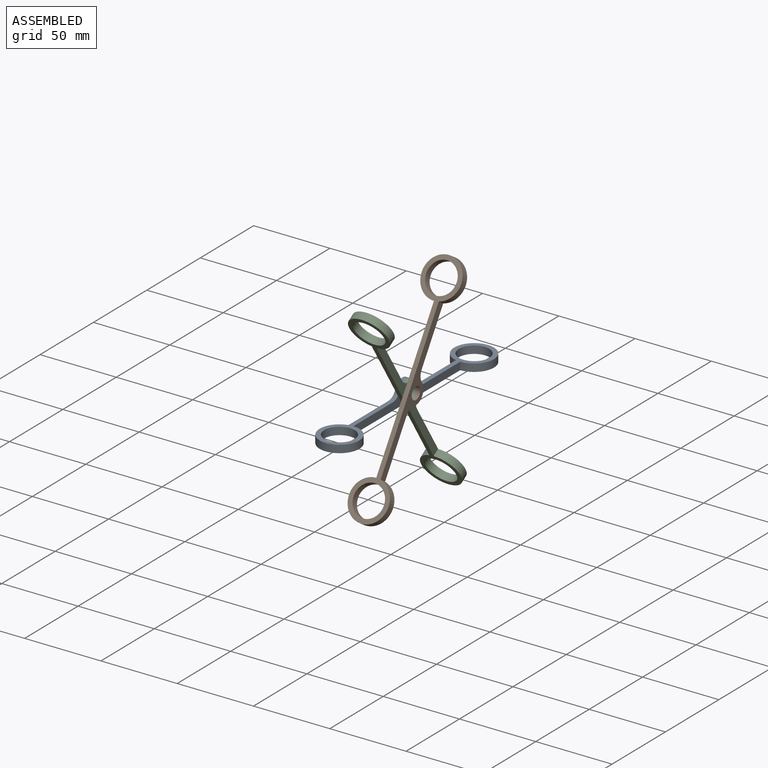
[diagram: assembled view]
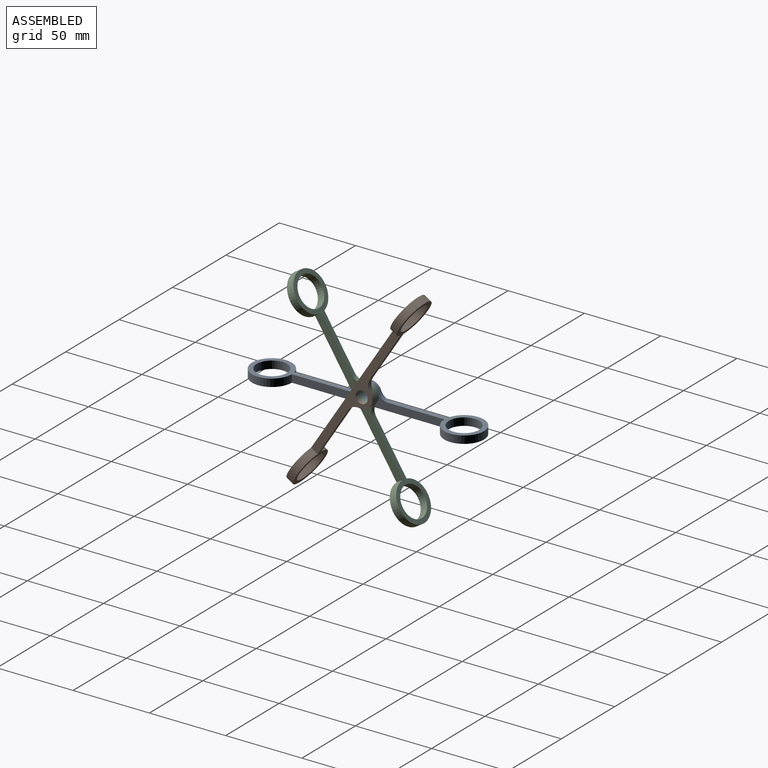
[diagram: assembled view, second angle]
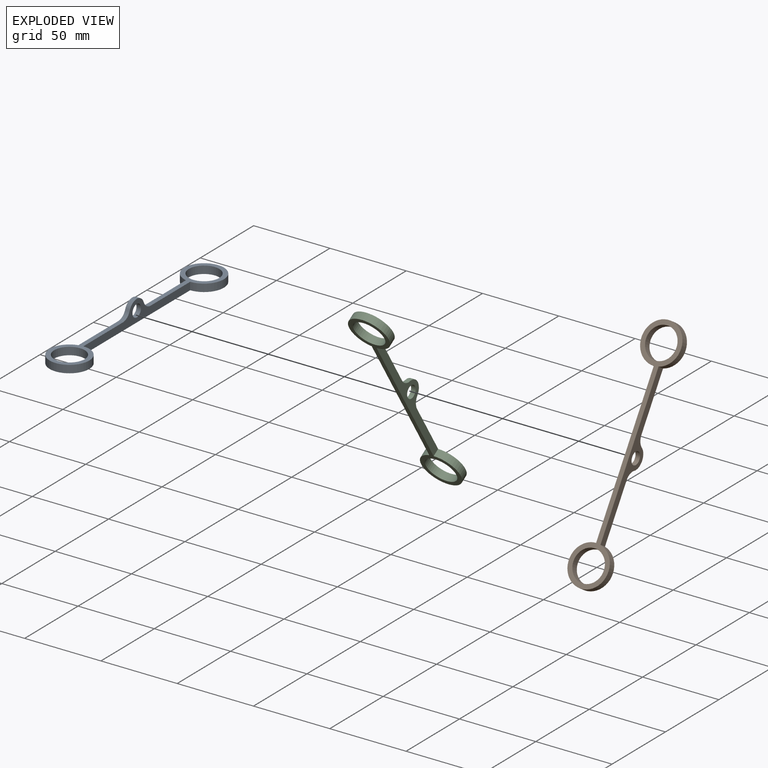
[diagram: exploded view]
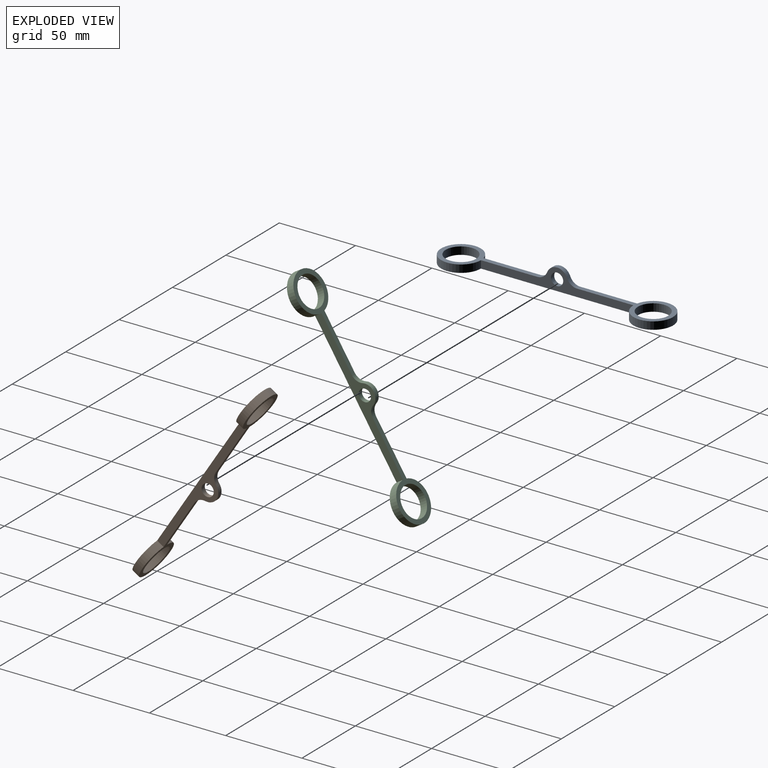
[diagram: exploded view, second angle]
ASSEMBLY  parts=3 mates=2
PART A: 13 faces, bbox 26x152x14 mm
  f0: plane 62.92x26mm, normal (0,0,1), area 327.9mm2, adj f1,f2,f3,f4,f9
  f1: plane 100x14mm, normal (1,0,0), area 567.4mm2, adj f0,f2,f6,f7,f8,f9,f10,f11
  f2: cylinder r=13mm len=26mm, axis (0,0,-1), area 393.3mm2, adj f0,f1,f3,f8
  f3: plane 100.7x14mm, normal (-1,0,0), area 570.9mm2, adj f0,f2,f6,f7,f8,f9,f10,f11
  f4: cylinder r=10mm len=20mm, axis (0,0,-1), area 314.2mm2, adj f0,f8
  f5: cylinder r=10mm len=20mm, axis (0,0,-1), area 314.2mm2, adj f7,f8
  f6: cylinder r=13mm len=26mm, axis (0,0,-1), area 393.3mm2, adj f1,f3,f7,f8
  f7: plane 62.92x26mm, normal (0,0,1), area 327.9mm2, adj f1,f3,f5,f6,f11
  f8: plane 152x26mm, normal (0,0,-1), area 734.2mm2, adj f1,f2,f3,f4,f5,f6
  f9: cylinder r=7mm len=6.54mm, axis (1,0,0), area 25.3mm2, adj f0,f1,f3,f12
  f10: cylinder r=4mm len=8mm, axis (1,0,0), area 75.4mm2, adj f1,f3
  f11: cylinder r=7mm len=6.54mm, axis (1,0,0), area 25.3mm2, adj f1,f3,f7,f12
  f12: cylinder r=7mm len=13.08mm, axis (1,0,0), area 50.6mm2, adj f1,f3,f9,f11
PART B: same geometry as A
PART C: same geometry as A
PLACE A t=(-25.06,0.74,7.5)mm
PLACE B rot(axis=(0,-0.88,-0.48),180deg) t=(-22.06,-3.05,14.43)mm
PLACE C rot(axis=(-1,0,0),57.7deg) t=(-22.06,-3.06,9.59)mm
MATE revolute C.f10 <-> A.f10  axis (1,0,0) through (-25.06,0.74,12)mm
MATE revolute B.f10 <-> C.f10  axis (-1,0,0) through (-22.06,0.74,12)mm
